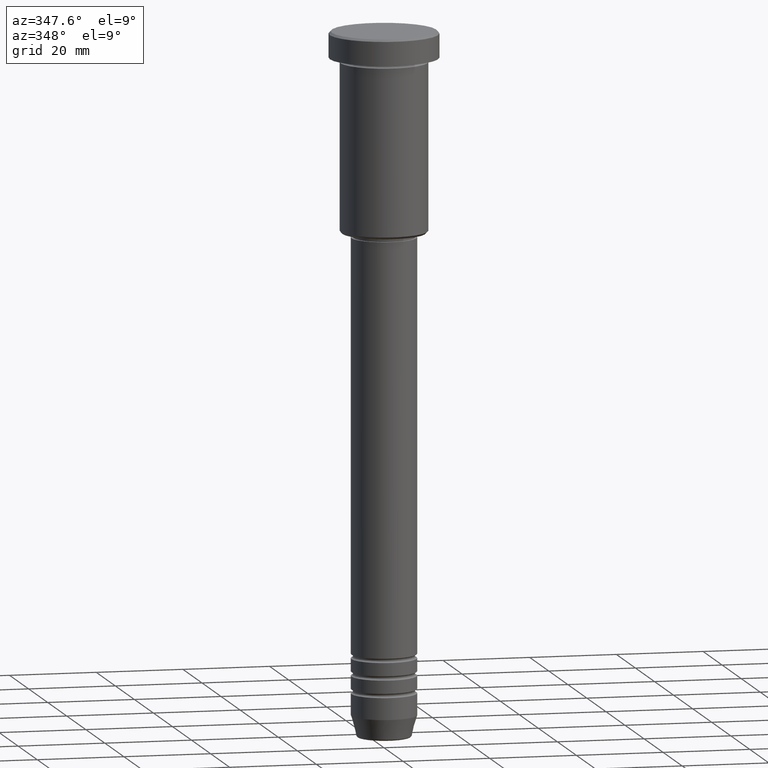
[diagram: clean part render]
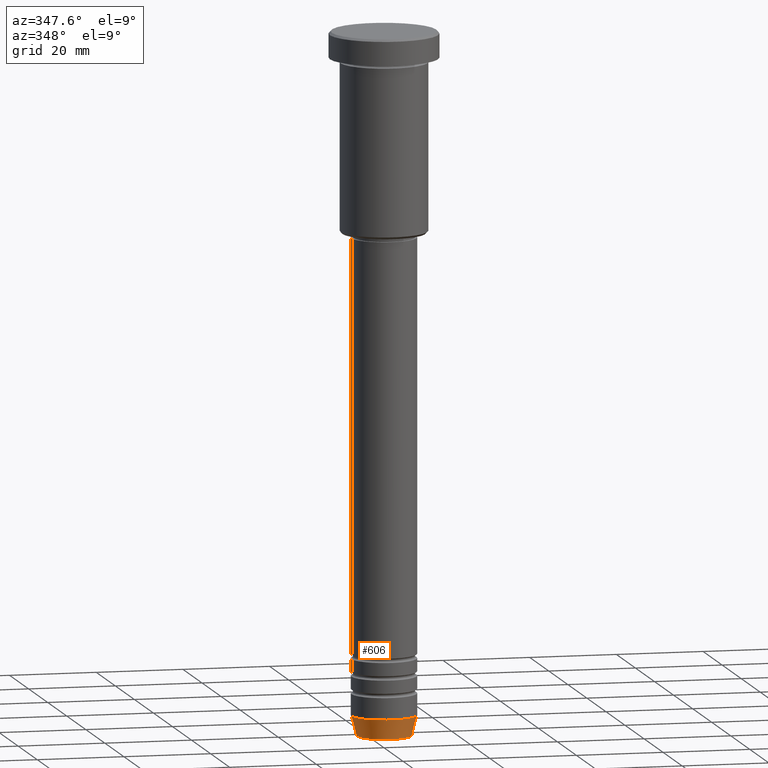
[diagram: same view with one face highlighted and labeled with its STEP entity id]
A machine part, auxiliary view. The second image highlights one B-rep face of the part: STEP entity #606.
In plain terms, the highlighted conical surface has half-angle 15 deg.
Its self-contained STEP definition (entity closure, byte-faithful):
#122 = VERTEX_POINT ( 'NONE', #251 ) ;
#161 = DIRECTION ( 'NONE',  ( 0.2588190451025213501, 0.000000000000000000, 0.9659258262890680902 ) ) ;
#224 = AXIS2_PLACEMENT_3D ( 'NONE', #255, #950, #759 ) ;
#251 = CARTESIAN_POINT ( 'NONE',  ( -6.259553456999438659, 8.425296549405629486E-16, -160.6294095225512706 ) ) ;
#255 = CARTESIAN_POINT ( 'NONE',  ( 0.000000000000000000, 0.000000000000000000, -156.0000000000000284 ) ) ;
#260 = EDGE_CURVE ( 'NONE', #122, #288, #1100, .T. ) ;
#287 = CARTESIAN_POINT ( 'NONE',  ( -7.500000000000000000, 9.184850993605147944E-16, -156.0000000000000284 ) ) ;
#288 = VERTEX_POINT ( 'NONE', #287 ) ;
#317 = VECTOR ( 'NONE', #472, 1000.000000000000000 ) ;
#348 = DIRECTION ( 'NONE',  ( -0.000000000000000000, -0.000000000000000000, 1.000000000000000000 ) ) ;
#354 = CARTESIAN_POINT ( 'NONE',  ( 7.500000000000000000, 0.000000000000000000, -156.0000000000000284 ) ) ;
#447 = CARTESIAN_POINT ( 'NONE',  ( 6.259553456999438659, 0.000000000000000000, -160.6294095225512706 ) ) ;
#458 = CARTESIAN_POINT ( 'NONE',  ( -7.500000000000000000, 9.184850993605147944E-16, -156.0000000000000284 ) ) ;
#472 = DIRECTION ( 'NONE',  ( -0.2588190451025213501, 3.169619151431772337E-17, 0.9659258262890680902 ) ) ;
#486 = DIRECTION ( 'NONE',  ( -0.000000000000000000, -0.000000000000000000, 1.000000000000000000 ) ) ;
#534 = AXIS2_PLACEMENT_3D ( 'NONE', #666, #486, #922 ) ;
#587 = CONICAL_SURFACE ( 'NONE', #224, 7.500000000000000000, 0.2617993877991500740 ) ;
#606 = ADVANCED_FACE ( 'NONE', ( #868 ), #587, .T. ) ;
#618 = EDGE_CURVE ( 'NONE', #122, #739, #880, .T. ) ;
#626 = LINE ( 'NONE', #354, #715 ) ;
#666 = CARTESIAN_POINT ( 'NONE',  ( 0.000000000000000000, 0.000000000000000000, -156.0000000000000284 ) ) ;
#711 = EDGE_CURVE ( 'NONE', #739, #1160, #626, .T. ) ;
#715 = VECTOR ( 'NONE', #161, 1000.000000000000000 ) ;
#739 = VERTEX_POINT ( 'NONE', #447 ) ;
#759 = DIRECTION ( 'NONE',  ( 1.000000000000000000, 0.000000000000000000, 0.000000000000000000 ) ) ;
#848 = CARTESIAN_POINT ( 'NONE',  ( 0.000000000000000000, 0.000000000000000000, -160.6294095225512706 ) ) ;
#865 = ORIENTED_EDGE ( 'NONE', *, *, #618, .T. ) ;
#868 = FACE_OUTER_BOUND ( 'NONE', #1054, .T. ) ;
#880 = CIRCLE ( 'NONE', #1172, 6.259553456999438659 ) ;
#900 = CIRCLE ( 'NONE', #534, 7.500000000000000000 ) ;
#909 = EDGE_CURVE ( 'NONE', #288, #1160, #900, .T. ) ;
#912 = ORIENTED_EDGE ( 'NONE', *, *, #711, .T. ) ;
#922 = DIRECTION ( 'NONE',  ( 1.000000000000000000, 0.000000000000000000, 0.000000000000000000 ) ) ;
#950 = DIRECTION ( 'NONE',  ( -0.000000000000000000, -0.000000000000000000, 1.000000000000000000 ) ) ;
#1049 = ORIENTED_EDGE ( 'NONE', *, *, #909, .F. ) ;
#1054 = EDGE_LOOP ( 'NONE', ( #1095, #865, #912, #1049 ) ) ;
#1067 = CARTESIAN_POINT ( 'NONE',  ( 7.500000000000000000, 0.000000000000000000, -156.0000000000000284 ) ) ;
#1095 = ORIENTED_EDGE ( 'NONE', *, *, #260, .F. ) ;
#1100 = LINE ( 'NONE', #458, #317 ) ;
#1130 = DIRECTION ( 'NONE',  ( 1.000000000000000000, 0.000000000000000000, 0.000000000000000000 ) ) ;
#1160 = VERTEX_POINT ( 'NONE', #1067 ) ;
#1172 = AXIS2_PLACEMENT_3D ( 'NONE', #848, #348, #1130 ) ;